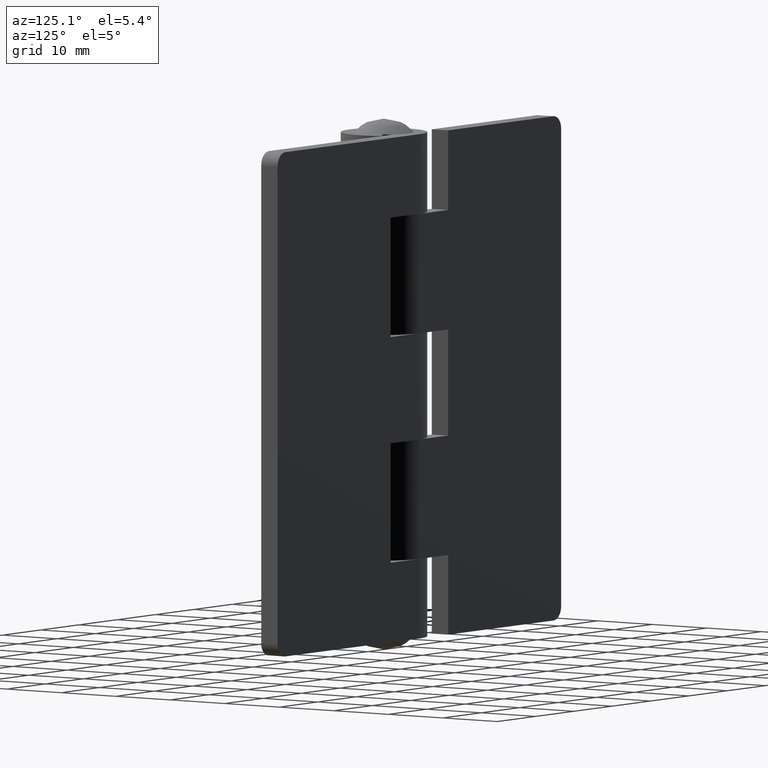
[diagram: clean part render]
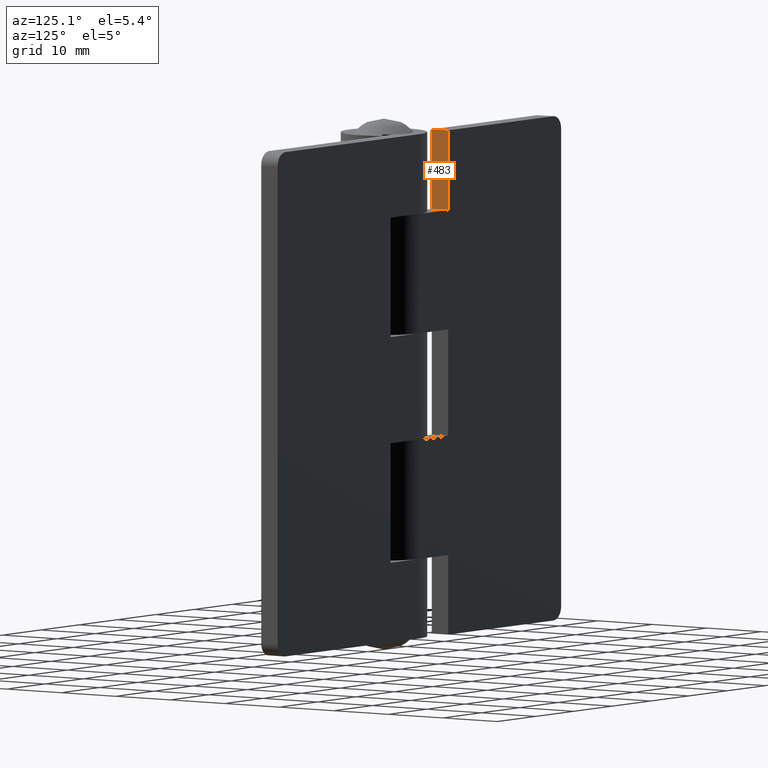
[diagram: same view with one face highlighted and labeled with its STEP entity id]
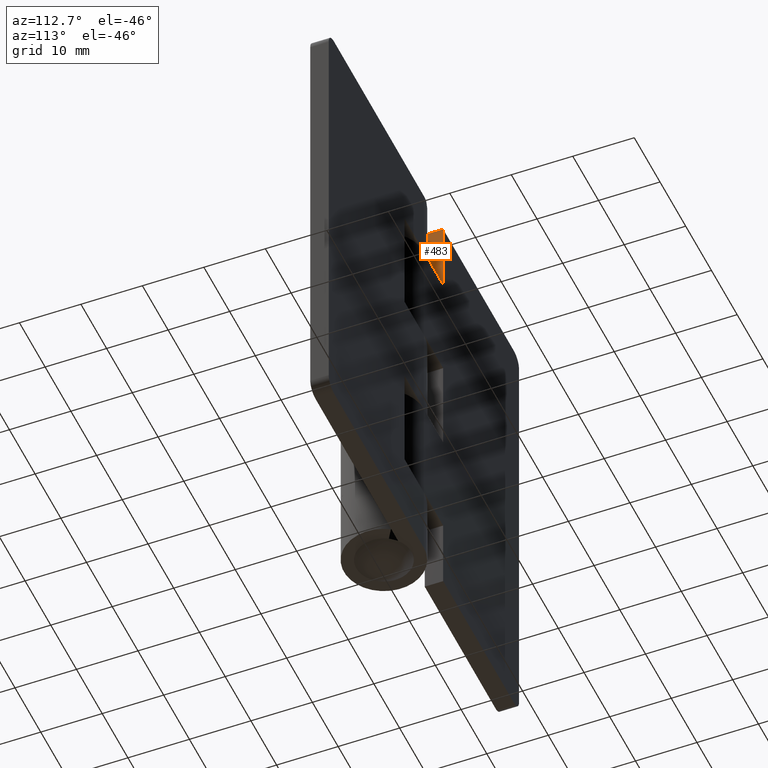
[diagram: same view with one face highlighted and labeled with its STEP entity id]
A machine part, auxiliary view. The second image highlights one B-rep face of the part: STEP entity #483.
A second angle (auxiliary view) of the same face is appended — the face is thin or edge-on in the first view.
In plain terms, the highlighted face is a freeform B-spline surface patch.
Its self-contained STEP definition (entity closure, byte-faithful):
#448=CARTESIAN_POINT('',(-7.500008000000000,3.350150005814530,76.599399976741680));
#449=CARTESIAN_POINT('',(-7.500008000000000,3.350150005814530,63.400599701393247));
#450=CARTESIAN_POINT('',(-7.500008000000000,6.649850074651692,76.599399976741680));
#451=CARTESIAN_POINT('',(-7.500008000000000,6.649850074651692,63.400599701393247));
#452=B_SPLINE_SURFACE_WITH_KNOTS('',1,1,((#448,#450),(#449,#451)),.UNSPECIFIED.,.F.,.F.,.U.,(2,2),(2,2),(0.0,13.198800275348431),(0.0,3.299700068837162),.UNSPECIFIED.);
#453=CARTESIAN_POINT('',(-7.500008000000000,3.499999999999950,76.0));
#454=VERTEX_POINT('',#453);
#455=CARTESIAN_POINT('',(-7.500008000000000,3.499999999999950,64.0));
#456=VERTEX_POINT('',#455);
#457=CARTESIAN_POINT('',(-7.500008000000000,3.499999999999950,76.0));
#458=CARTESIAN_POINT('',(-7.500008000000000,3.499999999999950,64.0));
#459=QUASI_UNIFORM_CURVE('',1,(#457,#458),.UNSPECIFIED.,.F.,.U.);
#460=EDGE_CURVE('',#454,#456,#459,.T.);
#461=ORIENTED_EDGE('',*,*,#460,.T.);
#462=CARTESIAN_POINT('',(-7.500008000000000,6.500000000000000,64.0));
#463=VERTEX_POINT('',#462);
#464=CARTESIAN_POINT('',(-7.500008000000000,3.499999999999950,64.0));
#465=CARTESIAN_POINT('',(-7.500008000000000,6.500000000000000,64.0));
#466=QUASI_UNIFORM_CURVE('',1,(#464,#465),.UNSPECIFIED.,.F.,.U.);
#467=EDGE_CURVE('',#456,#463,#466,.T.);
#468=ORIENTED_EDGE('',*,*,#467,.T.);
#469=CARTESIAN_POINT('',(-7.500008000000000,6.500000000000000,76.0));
#470=VERTEX_POINT('',#469);
#471=CARTESIAN_POINT('',(-7.500008000000000,6.500000000000000,76.0));
#472=CARTESIAN_POINT('',(-7.500008000000000,6.500000000000000,64.0));
#473=QUASI_UNIFORM_CURVE('',1,(#471,#472),.UNSPECIFIED.,.F.,.U.);
#474=EDGE_CURVE('',#470,#463,#473,.T.);
#475=ORIENTED_EDGE('',*,*,#474,.F.);
#476=CARTESIAN_POINT('',(-7.500008000000000,3.499999999999950,76.0));
#477=CARTESIAN_POINT('',(-7.500008000000000,6.500000000000000,76.0));
#478=QUASI_UNIFORM_CURVE('',1,(#476,#477),.UNSPECIFIED.,.F.,.U.);
#479=EDGE_CURVE('',#454,#470,#478,.T.);
#480=ORIENTED_EDGE('',*,*,#479,.F.);
#481=EDGE_LOOP('',(#461,#468,#475,#480));
#482=FACE_OUTER_BOUND('',#481,.T.);
#483=ADVANCED_FACE('',(#482),#452,.T.);